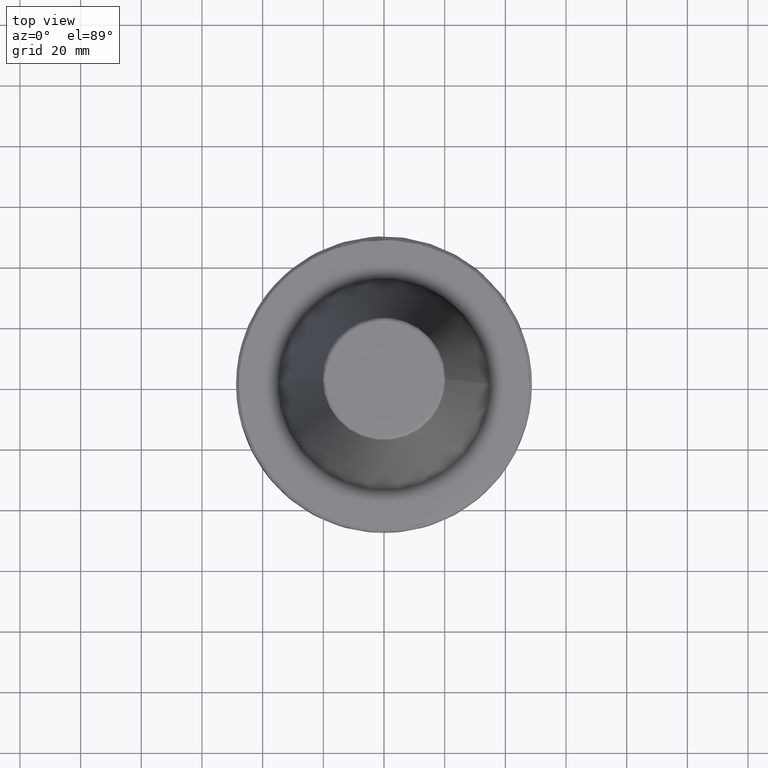
[diagram: clean part render]
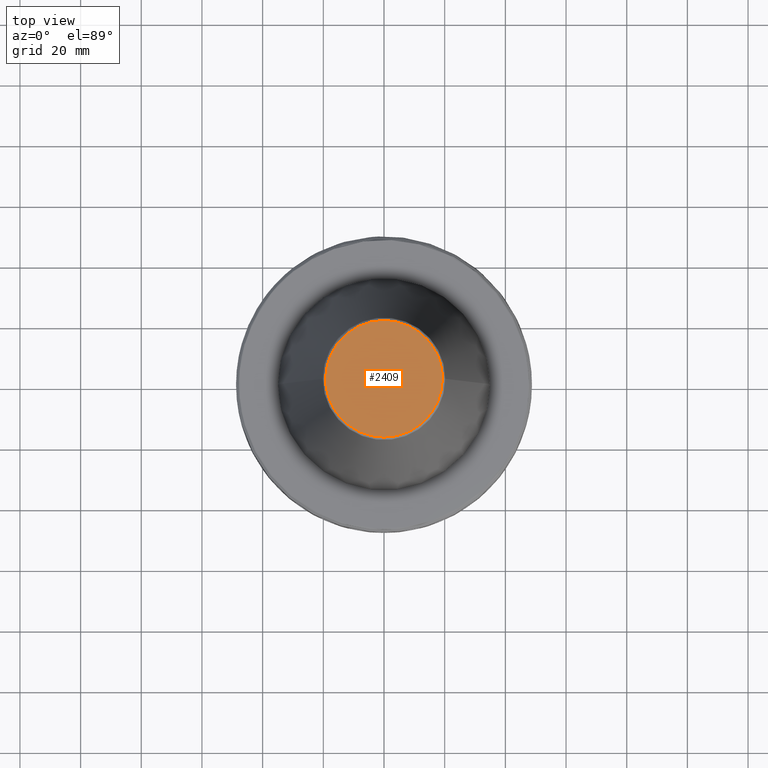
[diagram: same view with one face highlighted and labeled with its STEP entity id]
A machine part, top view. The second image highlights one B-rep face of the part: STEP entity #2409.
In plain terms, the highlighted planar face has unit normal (0, 0, 1).
Its self-contained STEP definition (entity closure, byte-faithful):
#111 =( BOUNDED_CURVE ( )  B_SPLINE_CURVE ( 3, ( #3161, #4547, #3862, #1629 ),
 .UNSPECIFIED., .F., .F. ) 
 B_SPLINE_CURVE_WITH_KNOTS ( ( 4, 4 ),
 ( 0.0000000000000000000, 1.000000000000000000 ),
 .UNSPECIFIED. ) 
 CURVE ( )  GEOMETRIC_REPRESENTATION_ITEM ( )  RATIONAL_B_SPLINE_CURVE ( ( 1.000000000000000000, 0.3333333333333333700, 0.3333333333333333700, 1.000000000000000000 ) ) 
 REPRESENTATION_ITEM ( '' )  );
#164 = EDGE_LOOP ( 'NONE', ( #2365, #914 ) ) ;
#243 = CARTESIAN_POINT ( 'NONE',  ( 19.22157500054540000, 0.0000000000000000000, 101.7499999999999900 ) ) ;
#350 = AXIS2_PLACEMENT_3D ( 'NONE', #2035, #1969, #1977 ) ;
#361 = CARTESIAN_POINT ( 'NONE',  ( 19.22157500054540000, 0.0000000000000000000, 101.7499999999999900 ) ) ;
#635 = VERTEX_POINT ( 'NONE', #361 ) ;
#914 = ORIENTED_EDGE ( 'NONE', *, *, #4070, .F. ) ;
#1629 = CARTESIAN_POINT ( 'NONE',  ( -19.22157500054540000, 2.378200593091452200E-015, 101.7499999999999900 ) ) ;
#1640 = CARTESIAN_POINT ( 'NONE',  ( -19.22157500054540000, 2.378200593091452200E-015, 101.7499999999999900 ) ) ;
#1743 = CARTESIAN_POINT ( 'NONE',  ( -19.22157500054539600, 38.44315000109079300, 101.7500000000000000 ) ) ;
#1744 = CARTESIAN_POINT ( 'NONE',  ( 19.22157500054540000, 38.44315000109079300, 101.7500000000000000 ) ) ;
#1776 = CARTESIAN_POINT ( 'NONE',  ( -19.22157500054540000, 2.378200593091452200E-015, 101.7499999999999900 ) ) ;
#1969 = DIRECTION ( 'NONE',  ( 0.0000000000000000000, 0.0000000000000000000, 1.000000000000000000 ) ) ;
#1973 = PLANE ( 'NONE',  #350 ) ;
#1977 = DIRECTION ( 'NONE',  ( 1.000000000000000000, 0.0000000000000000000, -0.0000000000000000000 ) ) ;
#2035 = CARTESIAN_POINT ( 'NONE',  ( 0.0000000000000000000, 7.346249770921763000E-014, 101.7500000000000000 ) ) ;
#2365 = ORIENTED_EDGE ( 'NONE', *, *, #2481, .F. ) ;
#2409 = ADVANCED_FACE ( 'NONE', ( #3538 ), #1973, .T. ) ;
#2481 = EDGE_CURVE ( 'NONE', #4778, #635, #3858, .T. ) ;
#3161 = CARTESIAN_POINT ( 'NONE',  ( 19.22157500054540000, 0.0000000000000000000, 101.7499999999999900 ) ) ;
#3538 = FACE_OUTER_BOUND ( 'NONE', #164, .T. ) ;
#3858 =( BOUNDED_CURVE ( )  B_SPLINE_CURVE ( 3, ( #1776, #1743, #1744, #243 ),
 .UNSPECIFIED., .F., .F. ) 
 B_SPLINE_CURVE_WITH_KNOTS ( ( 4, 4 ),
 ( 0.0000000000000000000, 1.000000000000000000 ),
 .UNSPECIFIED. ) 
 CURVE ( )  GEOMETRIC_REPRESENTATION_ITEM ( )  RATIONAL_B_SPLINE_CURVE ( ( 1.000000000000000000, 0.3333333333333333700, 0.3333333333333333700, 1.000000000000000000 ) ) 
 REPRESENTATION_ITEM ( '' )  );
#3862 = CARTESIAN_POINT ( 'NONE',  ( -19.22157500054540000, -38.44315000109079300, 101.7500000000000000 ) ) ;
#4070 = EDGE_CURVE ( 'NONE', #635, #4778, #111, .T. ) ;
#4547 = CARTESIAN_POINT ( 'NONE',  ( 19.22157500054540000, -38.44315000109079300, 101.7500000000000000 ) ) ;
#4778 = VERTEX_POINT ( 'NONE', #1640 ) ;